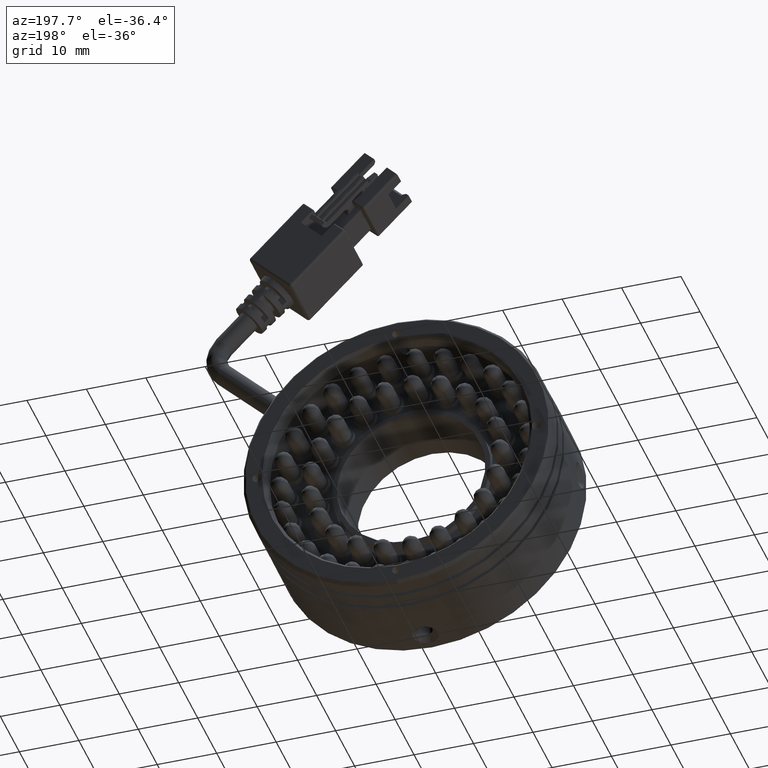
[diagram: clean part render]
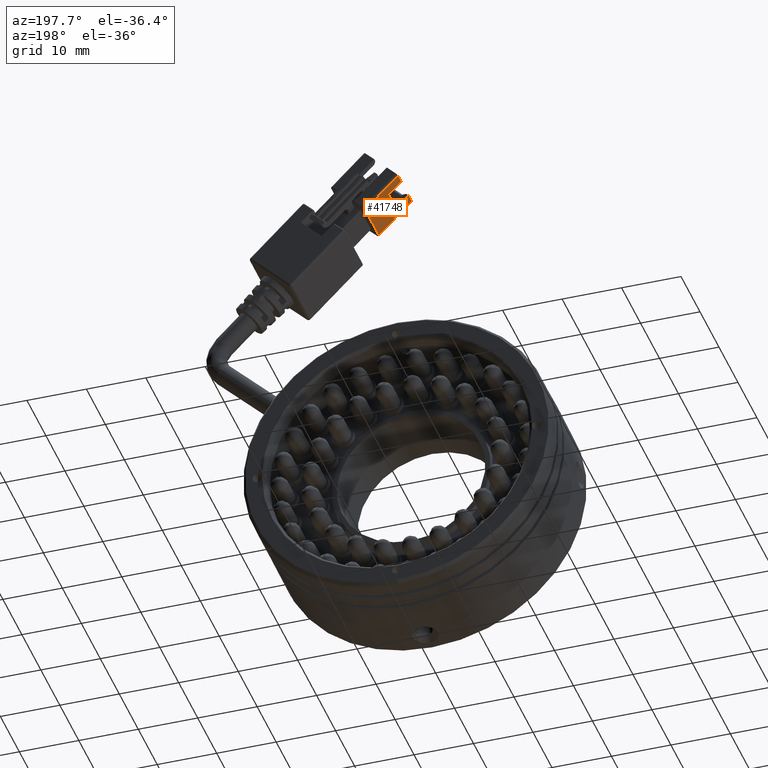
[diagram: same view with one face highlighted and labeled with its STEP entity id]
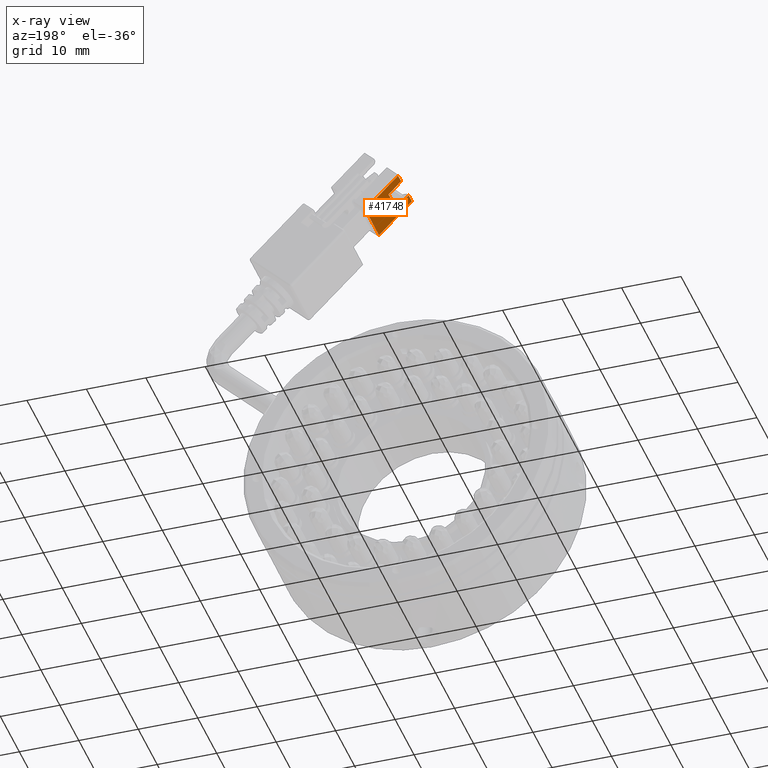
[diagram: x-ray of the same camera — body ghosted, the highlighted face saturated]
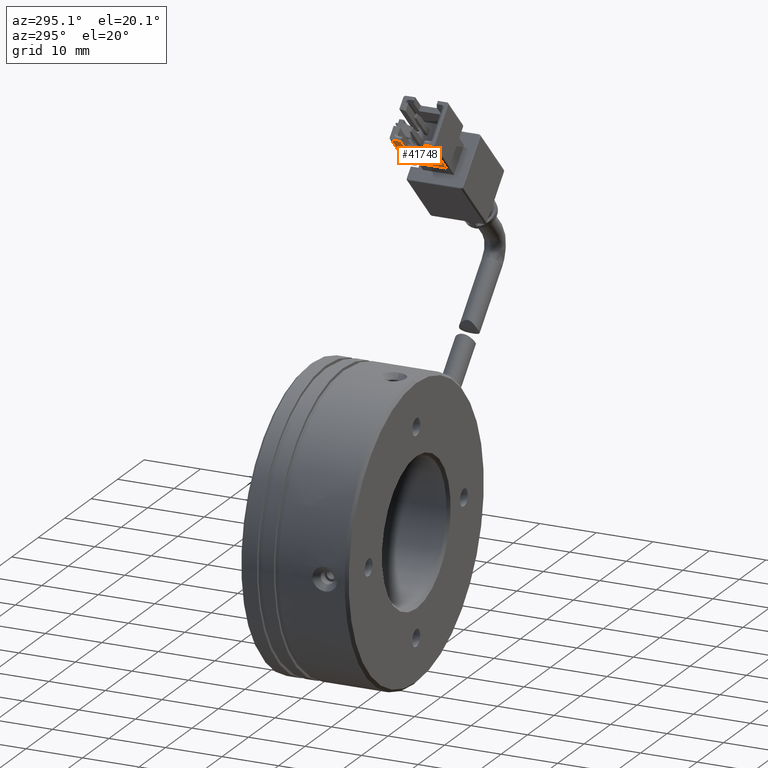
[diagram: same view with one face highlighted and labeled with its STEP entity id]
A machine part, auxiliary view. The second image highlights one B-rep face of the part: STEP entity #41748.
The next image is the same camera in x-ray: the body ghosted, the highlighted face saturated — about 0% of this face is hidden behind the body in this view.
A second angle (auxiliary view) of the same face is appended — the face is thin or edge-on in the first view.
In plain terms, the highlighted planar face has unit normal (0.7071, 0, 0.7071).
Its self-contained STEP definition (entity closure, byte-faithful):
#53 = DIRECTION ( 'NONE',  ( -2.839798023242279500E-016, 1.000000000000000000, -2.263002467479990200E-016 ) ) ;
#2025 = PLANE ( 'NONE',  #37470 ) ;
#2597 = CARTESIAN_POINT ( 'NONE',  ( 3.045850819780451200, -6.969923829761823300, 64.70027047856909500 ) ) ;
#4373 = EDGE_CURVE ( 'NONE', #40485, #28836, #10387, .T. ) ;
#4503 = LINE ( 'NONE', #43498, #22200 ) ;
#5834 = ORIENTED_EDGE ( 'NONE', *, *, #11529, .F. ) ;
#7475 = CARTESIAN_POINT ( 'NONE',  ( 8.561283713035546600, -7.369923829761823700, 59.18483758531402800 ) ) ;
#8057 = VECTOR ( 'NONE', #29166, 1000.000000000000200 ) ;
#9777 = DIRECTION ( 'NONE',  ( 0.7071067811865454600, 3.608224830031757800E-016, 0.7071067811865495700 ) ) ;
#10288 = EDGE_CURVE ( 'NONE', #19925, #43220, #47455, .T. ) ;
#10387 = LINE ( 'NONE', #40800, #29315 ) ;
#10826 = VECTOR ( 'NONE', #25276, 1000.000000000000200 ) ;
#11367 = ORIENTED_EDGE ( 'NONE', *, *, #34612, .F. ) ;
#11413 = ORIENTED_EDGE ( 'NONE', *, *, #43780, .F. ) ;
#11529 = EDGE_CURVE ( 'NONE', #43220, #40485, #16041, .T. ) ;
#14174 = ORIENTED_EDGE ( 'NONE', *, *, #14723, .F. ) ;
#14723 = EDGE_CURVE ( 'NONE', #36080, #37075, #36210, .T. ) ;
#15520 = CARTESIAN_POINT ( 'NONE',  ( 3.045850819780451200, -7.369923829761823700, 64.70027047856909500 ) ) ;
#16041 = LINE ( 'NONE', #15520, #36094 ) ;
#19737 = EDGE_CURVE ( 'NONE', #26921, #34993, #28126, .T. ) ;
#19925 = VERTEX_POINT ( 'NONE', #45237 ) ;
#20094 = ORIENTED_EDGE ( 'NONE', *, *, #47661, .F. ) ;
#21805 = ORIENTED_EDGE ( 'NONE', *, *, #19737, .F. ) ;
#22200 = VECTOR ( 'NONE', #35920, 1000.000000000000000 ) ;
#23553 = VECTOR ( 'NONE', #53, 1000.000000000000000 ) ;
#24136 = EDGE_LOOP ( 'NONE', ( #11413, #21805, #20094, #14174, #11367, #25711, #5834, #25043 ) ) ;
#25043 = ORIENTED_EDGE ( 'NONE', *, *, #10288, .F. ) ;
#25276 = DIRECTION ( 'NONE',  ( -0.7071067811865495700, -4.078560488377888700E-017, 0.7071067811865454600 ) ) ;
#25711 = ORIENTED_EDGE ( 'NONE', *, *, #4373, .F. ) ;
#26328 = CARTESIAN_POINT ( 'NONE',  ( 3.045850819780451200, 0.2300761702381773600, 64.70027047856909500 ) ) ;
#26921 = VERTEX_POINT ( 'NONE', #46727 ) ;
#28126 = LINE ( 'NONE', #2597, #8057 ) ;
#28836 = VERTEX_POINT ( 'NONE', #40163 ) ;
#29166 = DIRECTION ( 'NONE',  ( 0.7071067811865495700, 4.078560488377888700E-017, -0.7071067811865454600 ) ) ;
#29177 = FACE_OUTER_BOUND ( 'NONE', #24136, .T. ) ;
#29315 = VECTOR ( 'NONE', #40629, 1000.000000000000200 ) ;
#29795 = LINE ( 'NONE', #33797, #48599 ) ;
#30712 = DIRECTION ( 'NONE',  ( -0.7071067811865495700, -4.078560488377888700E-017, 0.7071067811865454600 ) ) ;
#32363 = CARTESIAN_POINT ( 'NONE',  ( 3.045850819780451200, -7.369923829761823700, 64.70027047856909500 ) ) ;
#32998 = CARTESIAN_POINT ( 'NONE',  ( 3.045850819780451200, -5.369923829761823700, 64.70027047856909500 ) ) ;
#33600 = LINE ( 'NONE', #7475, #23553 ) ;
#33797 = CARTESIAN_POINT ( 'NONE',  ( 5.167171163340100300, -7.369923829761823700, 62.57895013500945700 ) ) ;
#34612 = EDGE_CURVE ( 'NONE', #28836, #36080, #29795, .T. ) ;
#34993 = VERTEX_POINT ( 'NONE', #37232 ) ;
#35920 = DIRECTION ( 'NONE',  ( 2.839798023242279500E-016, -1.000000000000000000, 2.263002467479990200E-016 ) ) ;
#36080 = VERTEX_POINT ( 'NONE', #43126 ) ;
#36094 = VECTOR ( 'NONE', #41694, 1000.000000000000000 ) ;
#36180 = DIRECTION ( 'NONE',  ( -2.839798023242279500E-016, 1.000000000000000000, -2.263002467479990200E-016 ) ) ;
#36210 = LINE ( 'NONE', #47827, #10826 ) ;
#37075 = VERTEX_POINT ( 'NONE', #32998 ) ;
#37232 = CARTESIAN_POINT ( 'NONE',  ( 8.561283713035543000, -6.969923829761822500, 59.18483758531402800 ) ) ;
#37470 = AXIS2_PLACEMENT_3D ( 'NONE', #32363, #9777, #36180 ) ;
#37474 = VECTOR ( 'NONE', #30712, 1000.000000000000200 ) ;
#38135 = CARTESIAN_POINT ( 'NONE',  ( 3.045850819780451200, 0.2300761702381773600, 64.70027047856909500 ) ) ;
#40163 = CARTESIAN_POINT ( 'NONE',  ( 5.167171163340100300, -1.369923829761823500, 62.57895013500945700 ) ) ;
#40485 = VERTEX_POINT ( 'NONE', #42502 ) ;
#40629 = DIRECTION ( 'NONE',  ( 0.7071067811865495700, 4.078560488377888700E-017, -0.7071067811865454600 ) ) ;
#40800 = CARTESIAN_POINT ( 'NONE',  ( 3.045850819780451200, -1.369923829761823500, 64.70027047856909500 ) ) ;
#41350 = DIRECTION ( 'NONE',  ( 2.839798023242279500E-016, -1.000000000000000000, 2.263002467479990200E-016 ) ) ;
#41694 = DIRECTION ( 'NONE',  ( 2.839798023242279500E-016, -1.000000000000000000, 2.263002467479990200E-016 ) ) ;
#41748 = ADVANCED_FACE ( 'NONE', ( #29177 ), #2025, .F. ) ;
#42502 = CARTESIAN_POINT ( 'NONE',  ( 3.045850819780451200, -1.369923829761823500, 64.70027047856909500 ) ) ;
#43126 = CARTESIAN_POINT ( 'NONE',  ( 5.167171163340100300, -5.369923829761823700, 62.57895013500945700 ) ) ;
#43220 = VERTEX_POINT ( 'NONE', #26328 ) ;
#43498 = CARTESIAN_POINT ( 'NONE',  ( 3.045850819780451200, -7.369923829761823700, 64.70027047856909500 ) ) ;
#43780 = EDGE_CURVE ( 'NONE', #34993, #19925, #33600, .T. ) ;
#45237 = CARTESIAN_POINT ( 'NONE',  ( 8.561283713035539500, 0.2300761702381773600, 59.18483758531402800 ) ) ;
#46727 = CARTESIAN_POINT ( 'NONE',  ( 3.045850819780451200, -6.969923829761823300, 64.70027047856909500 ) ) ;
#47455 = LINE ( 'NONE', #38135, #37474 ) ;
#47661 = EDGE_CURVE ( 'NONE', #37075, #26921, #4503, .T. ) ;
#47827 = CARTESIAN_POINT ( 'NONE',  ( 3.045850819780451200, -5.369923829761823700, 64.70027047856909500 ) ) ;
#48599 = VECTOR ( 'NONE', #41350, 1000.000000000000000 ) ;